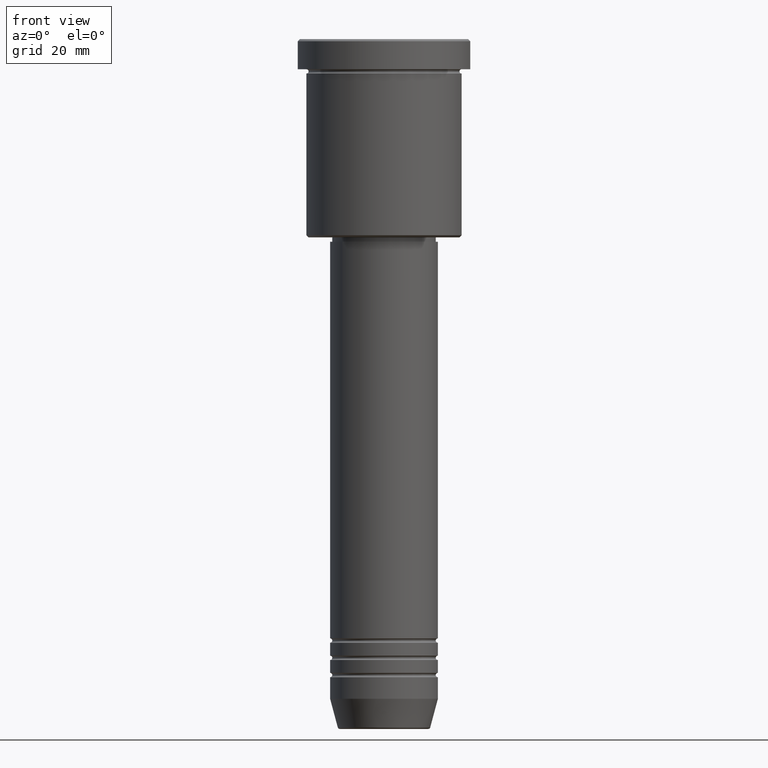
[diagram: clean part render]
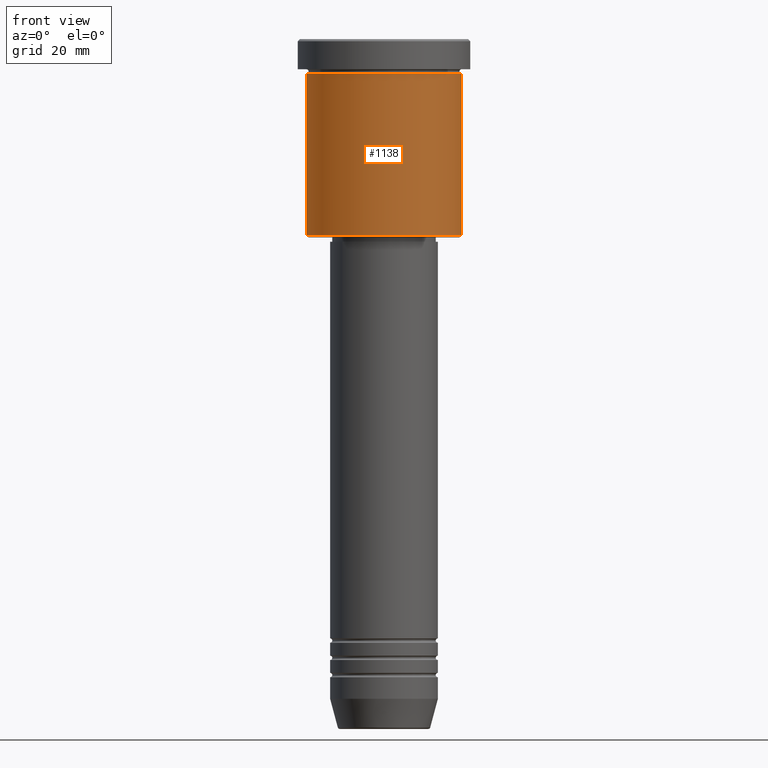
[diagram: same view with one face highlighted and labeled with its STEP entity id]
A machine part, front view. The second image highlights one B-rep face of the part: STEP entity #1138.
In plain terms, the highlighted cylindrical surface (partial cylindrical patch) has radius 18 mm, axis along (-0, -0, 1).
Its self-contained STEP definition (entity closure, byte-faithful):
#14 = CARTESIAN_POINT ( 'NONE',  ( -18.00000000000000000, 2.204364238465235428E-15, 0.000000000000000000 ) ) ;
#25 = CARTESIAN_POINT ( 'NONE',  ( 0.000000000000000000, 0.000000000000000000, 0.000000000000000000 ) ) ;
#60 = AXIS2_PLACEMENT_3D ( 'NONE', #25, #806, #901 ) ;
#67 = EDGE_CURVE ( 'NONE', #644, #560, #906, .T. ) ;
#107 = DIRECTION ( 'NONE',  ( -0.000000000000000000, -0.000000000000000000, 1.000000000000000000 ) ) ;
#169 = EDGE_CURVE ( 'NONE', #644, #216, #860, .T. ) ;
#211 = ORIENTED_EDGE ( 'NONE', *, *, #1177, .T. ) ;
#216 = VERTEX_POINT ( 'NONE', #850 ) ;
#254 = LINE ( 'NONE', #932, #539 ) ;
#283 = VERTEX_POINT ( 'NONE', #340 ) ;
#307 = DIRECTION ( 'NONE',  ( -1.000000000000000000, 0.000000000000000000, 0.000000000000000000 ) ) ;
#336 = VECTOR ( 'NONE', #107, 1000.000000000000000 ) ;
#340 = CARTESIAN_POINT ( 'NONE',  ( 18.00000000000000000, 0.000000000000000000, -7.999999999999996447 ) ) ;
#366 = CARTESIAN_POINT ( 'NONE',  ( -18.00000000000000000, 2.204364238465235428E-15, -45.50000000000002842 ) ) ;
#398 = ORIENTED_EDGE ( 'NONE', *, *, #169, .T. ) ;
#441 = CARTESIAN_POINT ( 'NONE',  ( 0.000000000000000000, 0.000000000000000000, -7.999999999999996447 ) ) ;
#469 = ORIENTED_EDGE ( 'NONE', *, *, #67, .F. ) ;
#517 = AXIS2_PLACEMENT_3D ( 'NONE', #712, #930, #307 ) ;
#539 = VECTOR ( 'NONE', #1148, 1000.000000000000000 ) ;
#542 = EDGE_LOOP ( 'NONE', ( #469, #398, #211, #677 ) ) ;
#560 = VERTEX_POINT ( 'NONE', #980 ) ;
#562 = CYLINDRICAL_SURFACE ( 'NONE', #60, 18.00000000000000000 ) ;
#644 = VERTEX_POINT ( 'NONE', #366 ) ;
#677 = ORIENTED_EDGE ( 'NONE', *, *, #729, .F. ) ;
#712 = CARTESIAN_POINT ( 'NONE',  ( 0.000000000000000000, 0.000000000000000000, -45.50000000000002842 ) ) ;
#722 = DIRECTION ( 'NONE',  ( 1.000000000000000000, 0.000000000000000000, 0.000000000000000000 ) ) ;
#729 = EDGE_CURVE ( 'NONE', #560, #283, #892, .T. ) ;
#790 = DIRECTION ( 'NONE',  ( -0.000000000000000000, -0.000000000000000000, 1.000000000000000000 ) ) ;
#806 = DIRECTION ( 'NONE',  ( -0.000000000000000000, -0.000000000000000000, 1.000000000000000000 ) ) ;
#850 = CARTESIAN_POINT ( 'NONE',  ( 18.00000000000000000, 0.000000000000000000, -45.50000000000002842 ) ) ;
#860 = CIRCLE ( 'NONE', #517, 18.00000000000000000 ) ;
#892 = CIRCLE ( 'NONE', #1160, 18.00000000000000000 ) ;
#901 = DIRECTION ( 'NONE',  ( 1.000000000000000000, 0.000000000000000000, 0.000000000000000000 ) ) ;
#906 = LINE ( 'NONE', #14, #336 ) ;
#930 = DIRECTION ( 'NONE',  ( -0.000000000000000000, -0.000000000000000000, 1.000000000000000000 ) ) ;
#932 = CARTESIAN_POINT ( 'NONE',  ( 18.00000000000000000, 0.000000000000000000, 0.000000000000000000 ) ) ;
#980 = CARTESIAN_POINT ( 'NONE',  ( -18.00000000000000000, 2.204364238465235428E-15, -7.999999999999996447 ) ) ;
#1097 = FACE_OUTER_BOUND ( 'NONE', #542, .T. ) ;
#1138 = ADVANCED_FACE ( 'NONE', ( #1097 ), #562, .T. ) ;
#1148 = DIRECTION ( 'NONE',  ( -0.000000000000000000, -0.000000000000000000, 1.000000000000000000 ) ) ;
#1160 = AXIS2_PLACEMENT_3D ( 'NONE', #441, #790, #722 ) ;
#1177 = EDGE_CURVE ( 'NONE', #216, #283, #254, .T. ) ;